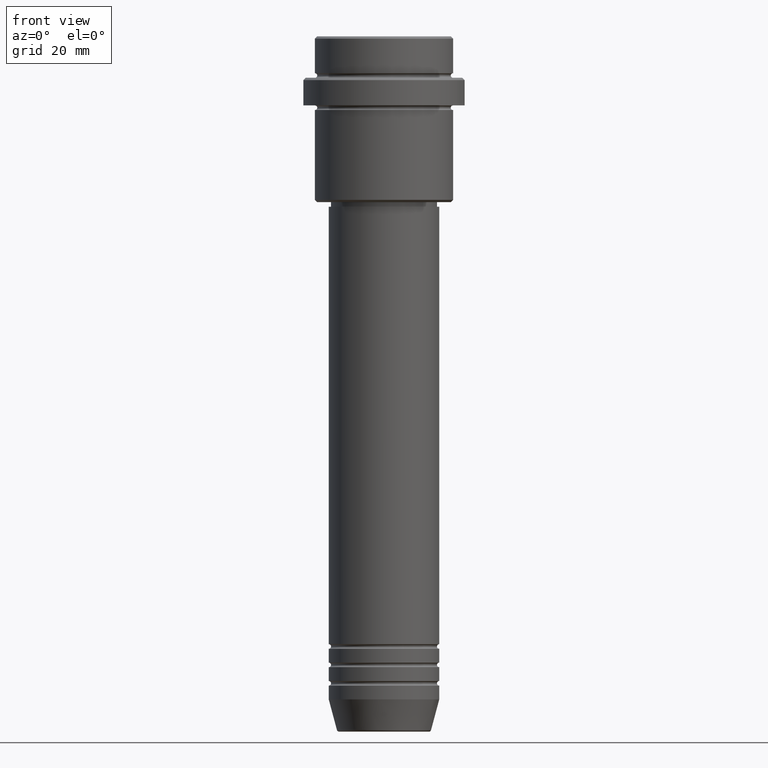
[diagram: clean part render]
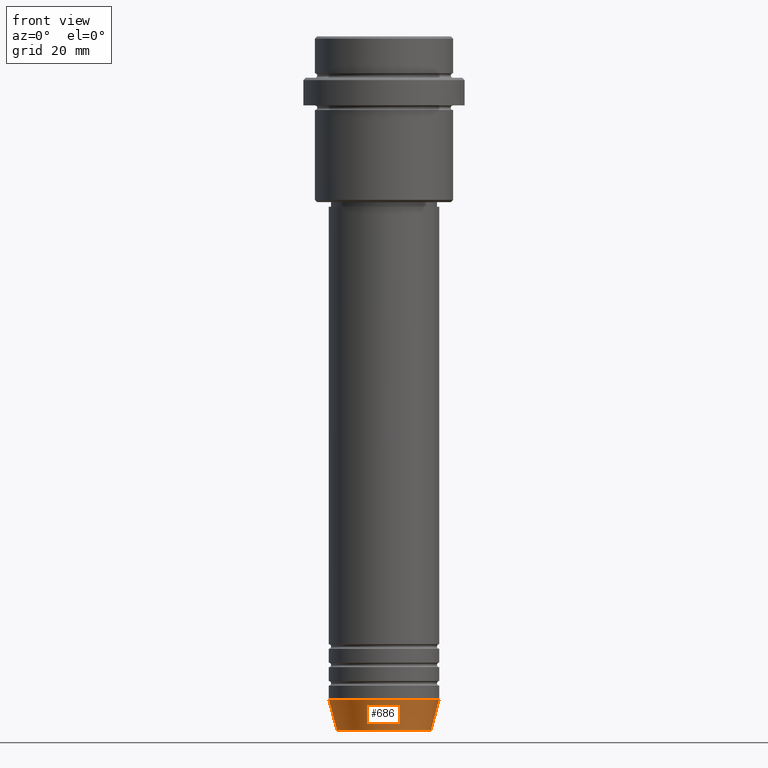
[diagram: same view with one face highlighted and labeled with its STEP entity id]
A machine part, front view. The second image highlights one B-rep face of the part: STEP entity #686.
In plain terms, the highlighted conical surface has half-angle 15 deg.
Its self-contained STEP definition (entity closure, byte-faithful):
#26 = VERTEX_POINT ( 'NONE', #375 ) ;
#28 = AXIS2_PLACEMENT_3D ( 'NONE', #450, #306, #540 ) ;
#30 = VECTOR ( 'NONE', #415, 1000.000000000000000 ) ;
#43 = DIRECTION ( 'NONE',  ( -0.000000000000000000, -0.000000000000000000, 1.000000000000000000 ) ) ;
#55 = FACE_OUTER_BOUND ( 'NONE', #1334, .T. ) ;
#117 = CARTESIAN_POINT ( 'NONE',  ( 12.00000000000000000, 0.000000000000000000, -144.0000000000000000 ) ) ;
#202 = EDGE_CURVE ( 'NONE', #842, #960, #527, .T. ) ;
#230 = CARTESIAN_POINT ( 'NONE',  ( -12.00000000000000000, 1.469576158976823947E-15, -144.0000000000000000 ) ) ;
#240 = ORIENTED_EDGE ( 'NONE', *, *, #1258, .T. ) ;
#261 = CARTESIAN_POINT ( 'NONE',  ( 0.000000000000000000, 0.000000000000000000, -144.0000000000000000 ) ) ;
#306 = DIRECTION ( 'NONE',  ( -0.000000000000000000, -0.000000000000000000, 1.000000000000000000 ) ) ;
#317 = CARTESIAN_POINT ( 'NONE',  ( 12.00000000000000000, 0.000000000000000000, -144.0000000000000000 ) ) ;
#375 = CARTESIAN_POINT ( 'NONE',  ( -10.22365507213718416, 1.360806402472382153E-15, -150.6294095225512422 ) ) ;
#415 = DIRECTION ( 'NONE',  ( -0.2588190451025222938, 3.169619151431783430E-17, 0.9659258262890678681 ) ) ;
#450 = CARTESIAN_POINT ( 'NONE',  ( 0.000000000000000000, 0.000000000000000000, -150.6294095225512422 ) ) ;
#451 = VECTOR ( 'NONE', #1402, 1000.000000000000000 ) ;
#480 = CIRCLE ( 'NONE', #28, 10.22365507213718416 ) ;
#485 = EDGE_CURVE ( 'NONE', #991, #960, #970, .T. ) ;
#527 = LINE ( 'NONE', #317, #451 ) ;
#540 = DIRECTION ( 'NONE',  ( 1.000000000000000000, 0.000000000000000000, 0.000000000000000000 ) ) ;
#608 = DIRECTION ( 'NONE',  ( 1.000000000000000000, 0.000000000000000000, 0.000000000000000000 ) ) ;
#612 = CARTESIAN_POINT ( 'NONE',  ( 0.000000000000000000, 0.000000000000000000, -144.0000000000000000 ) ) ;
#639 = ORIENTED_EDGE ( 'NONE', *, *, #485, .F. ) ;
#686 = ADVANCED_FACE ( 'NONE', ( #55 ), #769, .T. ) ;
#713 = DIRECTION ( 'NONE',  ( -0.000000000000000000, -0.000000000000000000, 1.000000000000000000 ) ) ;
#715 = CARTESIAN_POINT ( 'NONE',  ( 10.22365507213718416, 0.000000000000000000, -150.6294095225512422 ) ) ;
#769 = CONICAL_SURFACE ( 'NONE', #1087, 12.00000000000000000, 0.2617993877991510177 ) ;
#842 = VERTEX_POINT ( 'NONE', #715 ) ;
#897 = DIRECTION ( 'NONE',  ( 1.000000000000000000, 0.000000000000000000, 0.000000000000000000 ) ) ;
#960 = VERTEX_POINT ( 'NONE', #117 ) ;
#970 = CIRCLE ( 'NONE', #1198, 12.00000000000000000 ) ;
#991 = VERTEX_POINT ( 'NONE', #230 ) ;
#1087 = AXIS2_PLACEMENT_3D ( 'NONE', #612, #713, #608 ) ;
#1166 = LINE ( 'NONE', #1176, #30 ) ;
#1176 = CARTESIAN_POINT ( 'NONE',  ( -12.00000000000000000, 1.469576158976823947E-15, -144.0000000000000000 ) ) ;
#1184 = ORIENTED_EDGE ( 'NONE', *, *, #1298, .F. ) ;
#1198 = AXIS2_PLACEMENT_3D ( 'NONE', #261, #43, #897 ) ;
#1258 = EDGE_CURVE ( 'NONE', #26, #842, #480, .T. ) ;
#1298 = EDGE_CURVE ( 'NONE', #26, #991, #1166, .T. ) ;
#1334 = EDGE_LOOP ( 'NONE', ( #1184, #240, #1377, #639 ) ) ;
#1377 = ORIENTED_EDGE ( 'NONE', *, *, #202, .T. ) ;
#1402 = DIRECTION ( 'NONE',  ( 0.2588190451025222938, 0.000000000000000000, 0.9659258262890678681 ) ) ;